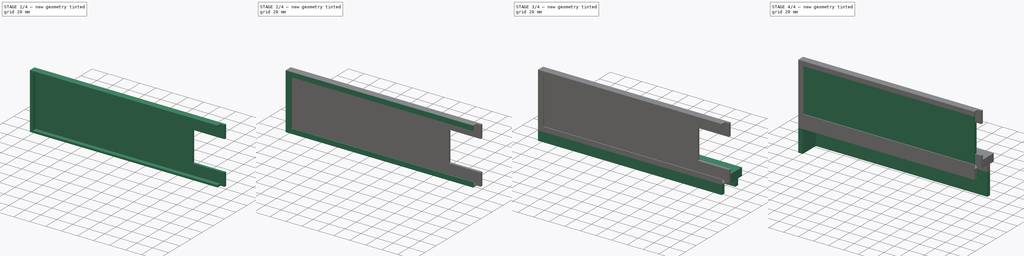
[diagram: build sequence overview — one tinted view per stage of 4, left to right]
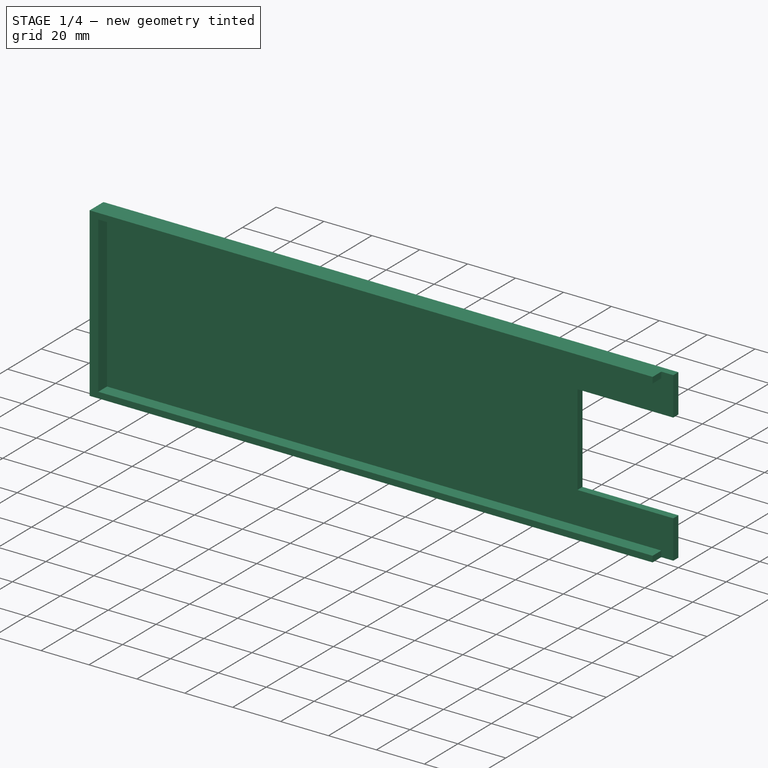
[diagram: stage 1 of 4 — iso view after this stage's code; geometry added in this stage tinted green]
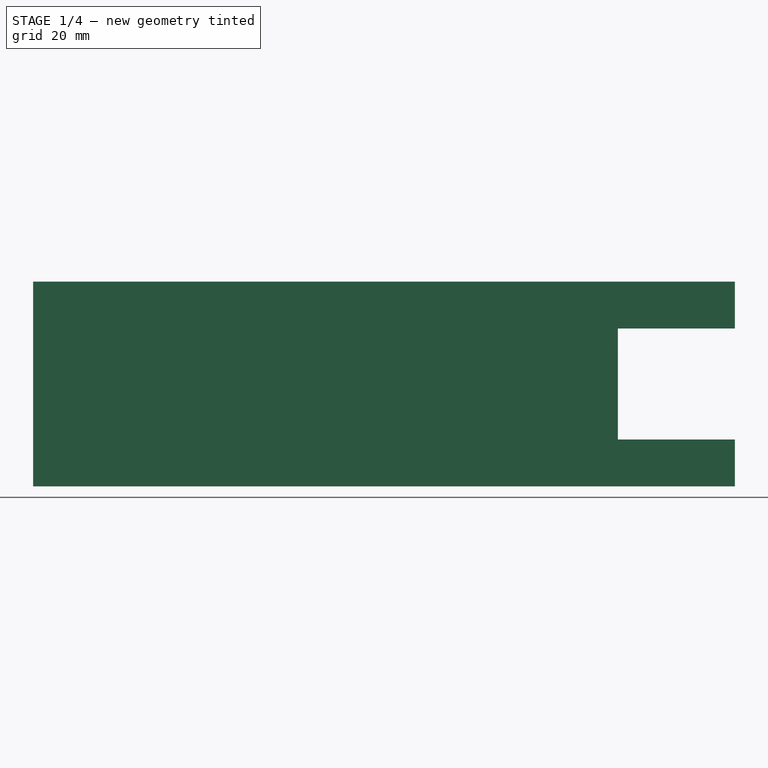
[diagram: stage 1 of 4 — front view after this stage's code; geometry added in this stage tinted green]
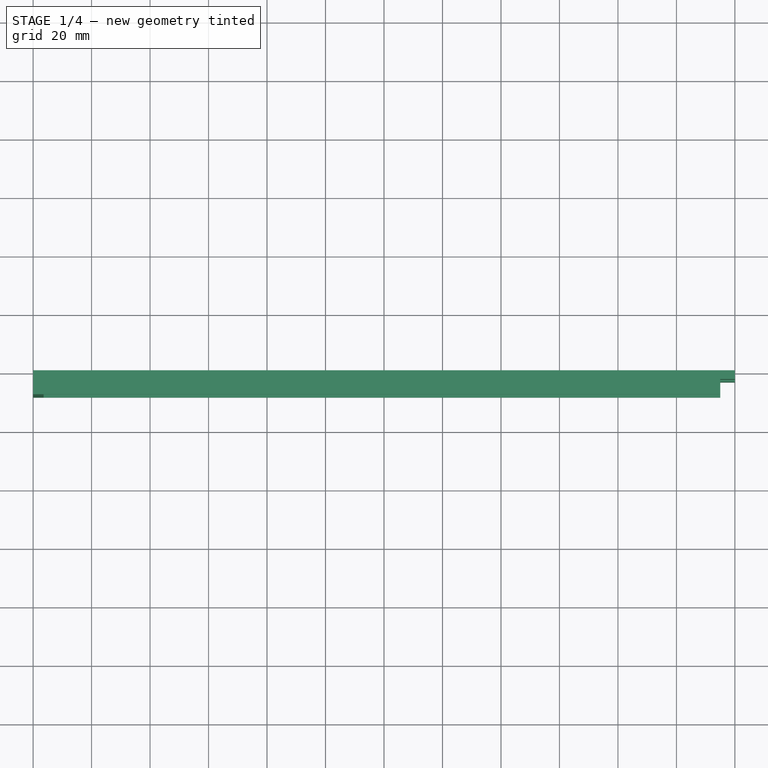
[diagram: stage 1 of 4 — top view after this stage's code; geometry added in this stage tinted green]
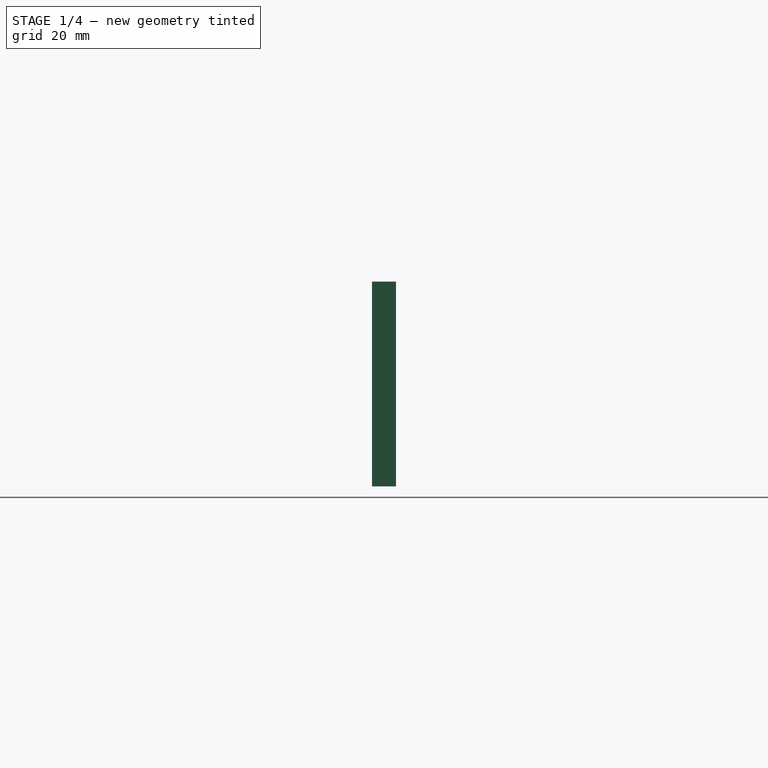
[diagram: stage 1 of 4 — right view after this stage's code; geometry added in this stage tinted green]
FCSTD DOCUMENT  (FreeCAD 0.18R16161 (Git))
Label: Wide Display Mount
License: All rights reserved
LicenseURL: http://en.wikipedia.org/wiki/All_rights_reserved
objects: Sketcher::SketchObject×10, PartDesign::Pad×8, PartDesign::Pocket×2, PartDesign::Body×2, PartDesign::Chamfer×2
note: 34 computed .brp shape members not serialized (recipe doc carries the construction recipe); baked Part::Feature solids carry a one-line shape summary decoded from their .brp

FEATURE [PartDesign::Body] Body  label="Display"
  Group = -> [Sketch,Pad,Sketch001,Pocket]
  Origin = -> Origin
  Placement = pos=(4,-3,2.8) rot=(0,0,1;0rad)
  Tip = -> Pocket
FEATURE [Sketcher::SketchObject] Sketch002
  MapMode = 5
  Placement = pos=(0,0,0) rot=(1,0,0;1.5708rad)
  Support = -> [XZ_Plane001]
  sketch-geometry (4):
    g0: LineSegment StartX=0 StartY=0 StartZ=0 EndX=240 EndY=0 EndZ=0
    g1: LineSegment StartX=240 StartY=0 StartZ=0 EndX=240 EndY=70 EndZ=0
    g2: LineSegment StartX=240 StartY=70 StartZ=0 EndX=0 EndY=70 EndZ=0
    g3: LineSegment StartX=0 StartY=70 StartZ=0 EndX=0 EndY=0 EndZ=0
  constraints (11):
    c: Coincident(g0,g1)
    c: Coincident(g1,g2)
    c: Coincident(g2,g3)
    c: Coincident(g3,g0)
    c: Horizontal(g0)
    c: Horizontal(g2)
    c: Vertical(g1)
    c: Vertical(g3)
    c: Coincident(g0,g-1)
    c: DistanceX(g2,g2) = 240
    c: DistanceY(g1,g1) = 70
FEATURE [PartDesign::Pad] Pad001
  Length = 3
  Length2 = 100
  Placement = pos=(0,0,0) rot=(1,0,0;1.5708rad)
  Profile = -> Sketch002
  Type = 0
FEATURE [Sketcher::SketchObject] Sketch003
  MapMode = 5
  Placement = pos=(0,1e-16,0) rot=(-1,0,0;1.5708rad)
  Support = -> [Pad001]
  sketch-geometry (4):
    g0: LineSegment StartX=260 StartY=-54 StartZ=0 EndX=200 EndY=-54 EndZ=0
    g1: LineSegment StartX=200 StartY=-54 StartZ=0 EndX=200 EndY=-16 EndZ=0
    g2: LineSegment StartX=200 StartY=-16 StartZ=0 EndX=260 EndY=-16 EndZ=0
    g3: LineSegment StartX=260 StartY=-16 StartZ=0 EndX=260 EndY=-54 EndZ=0
  constraints (12):
    c: Coincident(g0,g1)
    c: Coincident(g1,g2)
    c: Coincident(g2,g3)
    c: Coincident(g3,g0)
    c: Horizontal(g0)
    c: Horizontal(g2)
    c: Vertical(g1)
    c: Vertical(g3)
    c: DistanceY(g1,g-1) = 16
    c: DistanceX(g-1,g1) = 200
    c: DistanceX(g2,g2) = 60
    c: DistanceY(g1,g1) = 38
FEATURE [PartDesign::Pocket] Pocket001
  BaseFeature = -> Pad001
  Length = 5
  Length2 = 100
  Placement = pos=(0,0,0) rot=(1,0,0;1.5708rad)
  Profile = -> Sketch003
  Type = 0
FEATURE [Sketcher::SketchObject] Sketch004
  MapMode = 5
  Placement = pos=(0,-3,1.3e-15) rot=(1,0,0;1.5708rad)
  Support = -> [Pocket001]
  sketch-geometry (8):
    g0: LineSegment StartX=0 StartY=70 StartZ=0 EndX=0 EndY=0 EndZ=0
    g1: LineSegment StartX=0 StartY=70 StartZ=0 EndX=235 EndY=70 EndZ=0
    g2: LineSegment StartX=235 StartY=70 StartZ=0 EndX=235 EndY=67.5 EndZ=0
    g3: LineSegment StartX=235 StartY=67.5 StartZ=0 EndX=3.6 EndY=67.5 EndZ=0
    g4: LineSegment StartX=0 StartY=0 StartZ=0 EndX=235 EndY=0 EndZ=0
    g5: LineSegment StartX=235 StartY=0 StartZ=0 EndX=235 EndY=2.5 EndZ=0
    g6: LineSegment StartX=235 StartY=2.5 StartZ=0 EndX=3.6 EndY=2.5 EndZ=0
    g7: LineSegment StartX=3.6 StartY=2.5 StartZ=0 EndX=3.6 EndY=67.5 EndZ=0
  constraints (23):
    c: Vertical(g0)
    c: Coincident(g1,g2)
    c: Coincident(g2,g3)
    c: Horizontal(g1)
    c: Horizontal(g3)
    c: Vertical(g2)
    c: Coincident(g4,g5)
    c: Coincident(g5,g6)
    c: Horizontal(g4)
    c: Horizontal(g6)
    c: Vertical(g5)
    c: Equal(g1,g4)
    c: DistanceY(g0,g0) = 70
    c: Equal(g2,g5)
    c: Coincident(g7,g6)
    c: Coincident(g7,g3)
    c: Vertical(g7)
    c: DistanceX(g0,g3) = 3.6
    c: Coincident(g4,g0)
    c: Coincident(g1,g0)
    c: Coincident(g0,g-1)
    c: DistanceX(g4,g4) = 235
    c: DistanceY(g7,g7) = 65
FEATURE [PartDesign::Pad] Pad002
  BaseFeature = -> Pocket001
  Length = 5.2
  Length2 = 100
  Placement = pos=(0,0,0) rot=(1,0,0;1.5708rad)
  Profile = -> Sketch004
  Type = 0
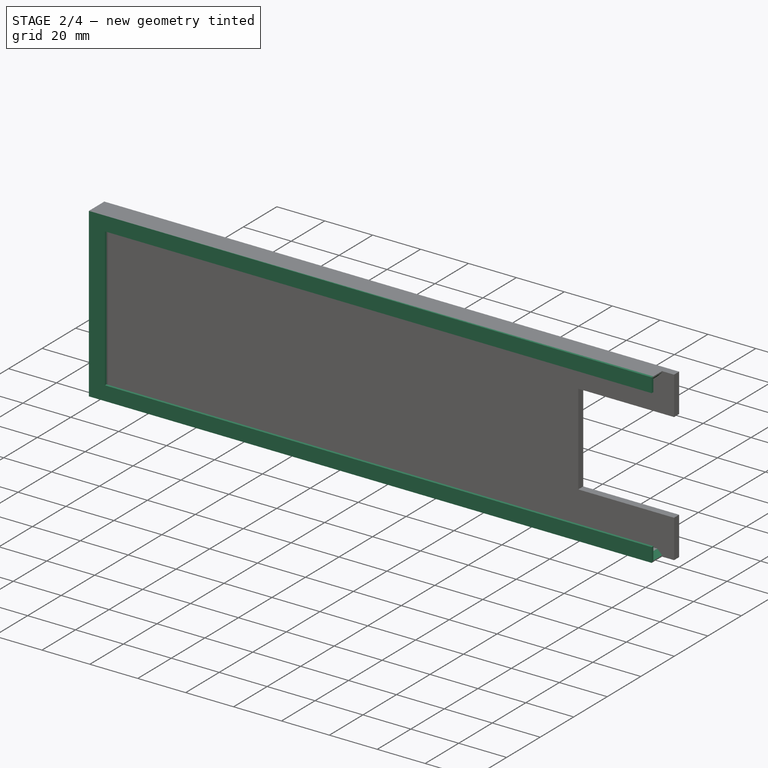
[diagram: stage 2 of 4 — iso view after this stage's code; geometry added in this stage tinted green]
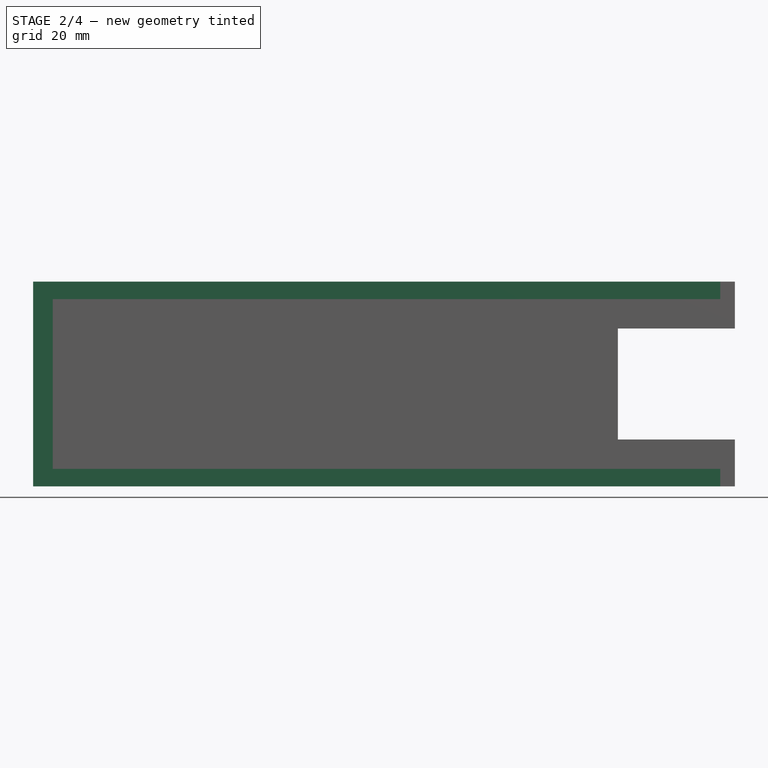
[diagram: stage 2 of 4 — front view after this stage's code; geometry added in this stage tinted green]
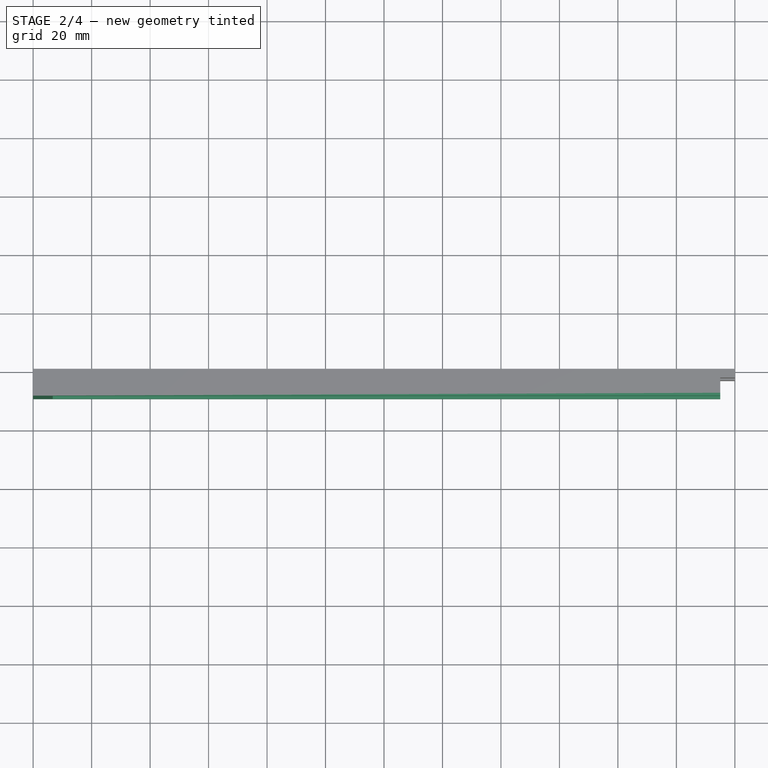
[diagram: stage 2 of 4 — top view after this stage's code; geometry added in this stage tinted green]
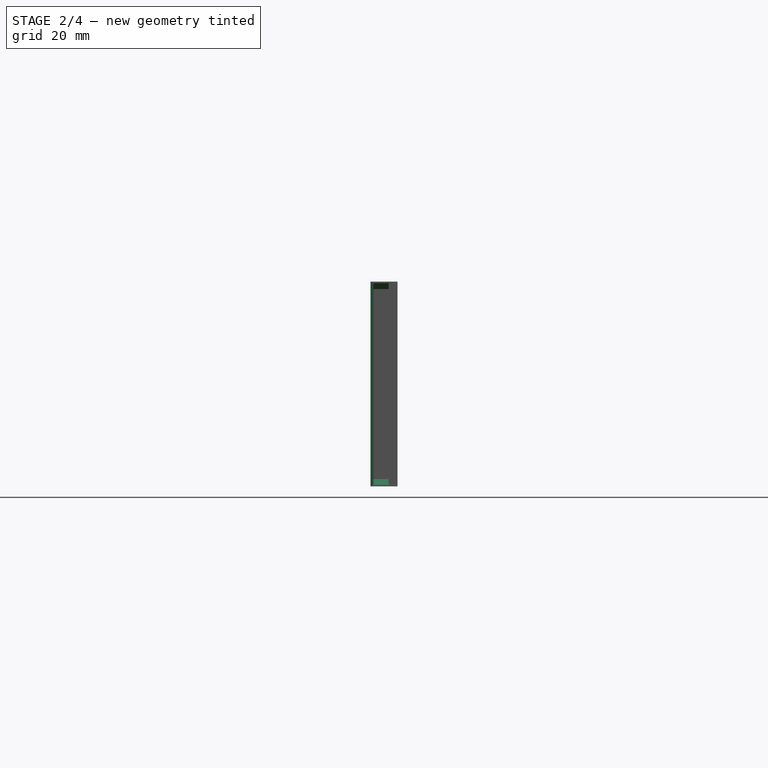
[diagram: stage 2 of 4 — right view after this stage's code; geometry added in this stage tinted green]
FEATURE [PartDesign::Chamfer] Chamfer
  Base = -> Pad002 [Edge46]
  BaseFeature = -> Pad002
  Placement = pos=(0,0,0) rot=(1,0,0;1.5708rad)
  Size = 2
FEATURE [PartDesign::Chamfer] Chamfer001
  Base = -> Chamfer [Edge23]
  BaseFeature = -> Chamfer
  Placement = pos=(0,0,0) rot=(1,0,0;1.5708rad)
  Size = 2
FEATURE [Sketcher::SketchObject] Sketch005
  MapMode = 5
  Placement = pos=(0,-8.2,1.09e-14) rot=(1,0,0;1.5708rad)
  Support = -> [Chamfer001]
  sketch-geometry (8):
    g0: LineSegment StartX=0 StartY=0 StartZ=0 EndX=0 EndY=70 EndZ=0
    g1: LineSegment StartX=0 StartY=70 StartZ=0 EndX=235 EndY=70 EndZ=0
    g2: LineSegment StartX=235 StartY=70 StartZ=0 EndX=235 EndY=64.05 EndZ=0
    g3: LineSegment StartX=235 StartY=64.05 StartZ=0 EndX=6.7 EndY=64.05 EndZ=0
    g4: LineSegment StartX=6.7 StartY=64.05 StartZ=0 EndX=6.7 EndY=5.95 EndZ=0
    g5: LineSegment StartX=6.7 StartY=5.95 StartZ=0 EndX=235 EndY=5.95 EndZ=0
    g6: LineSegment StartX=235 StartY=5.95 StartZ=0 EndX=235 EndY=0 EndZ=0
    g7: LineSegment StartX=235 StartY=0 StartZ=0 EndX=0 EndY=0 EndZ=0
  constraints (23):
    c: Coincident(g-1,g0)
    c: Vertical(g0)
    c: Coincident(g0,g1)
    c: Horizontal(g1)
    c: Coincident(g1,g2)
    c: Vertical(g2)
    c: Coincident(g2,g3)
    c: Horizontal(g3)
    c: Coincident(g3,g4)
    c: Vertical(g4)
    c: Coincident(g4,g5)
    c: Horizontal(g5)
    c: Coincident(g5,g6)
    c: Vertical(g6)
    c: Coincident(g6,g7)
    c: Coincident(g7,g0)
    c: Horizontal(g7)
    c: Equal(g2,g6)
    c: DistanceY(g0,g0) = 70
    c: DistanceX(g1,g1) = 235
    c: DistanceY(g4,g4) = 58.1
    c: DistanceX(g0,g4) = 6.7
    c: Equal(g7,g1)
FEATURE [PartDesign::Pad] Pad003
  BaseFeature = -> Chamfer001
  Length = 1
  Length2 = 100
  Placement = pos=(0,0,0) rot=(1,0,0;1.5708rad)
  Profile = -> Sketch005
  Type = 0
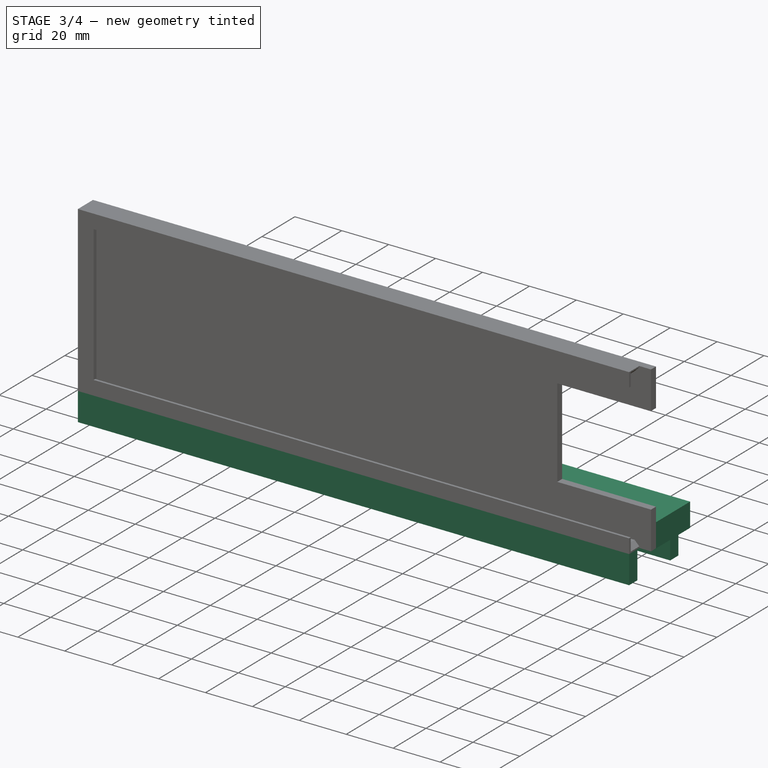
[diagram: stage 3 of 4 — iso view after this stage's code; geometry added in this stage tinted green]
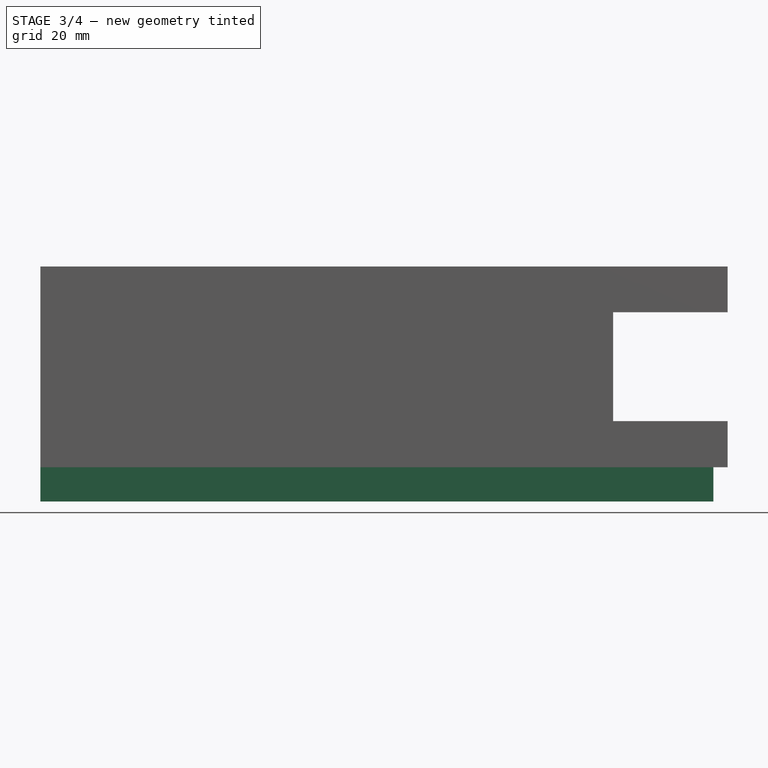
[diagram: stage 3 of 4 — front view after this stage's code; geometry added in this stage tinted green]
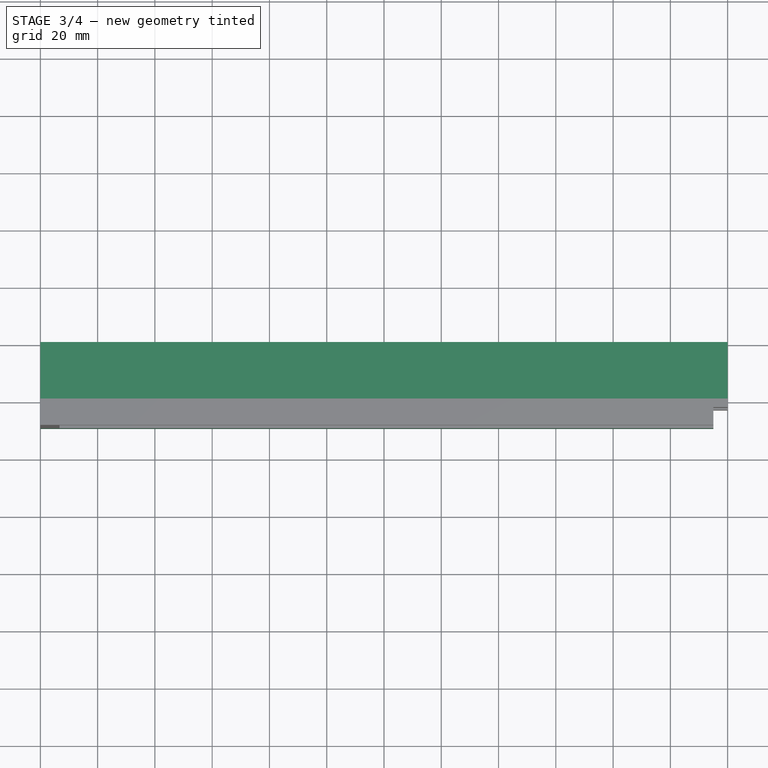
[diagram: stage 3 of 4 — top view after this stage's code; geometry added in this stage tinted green]
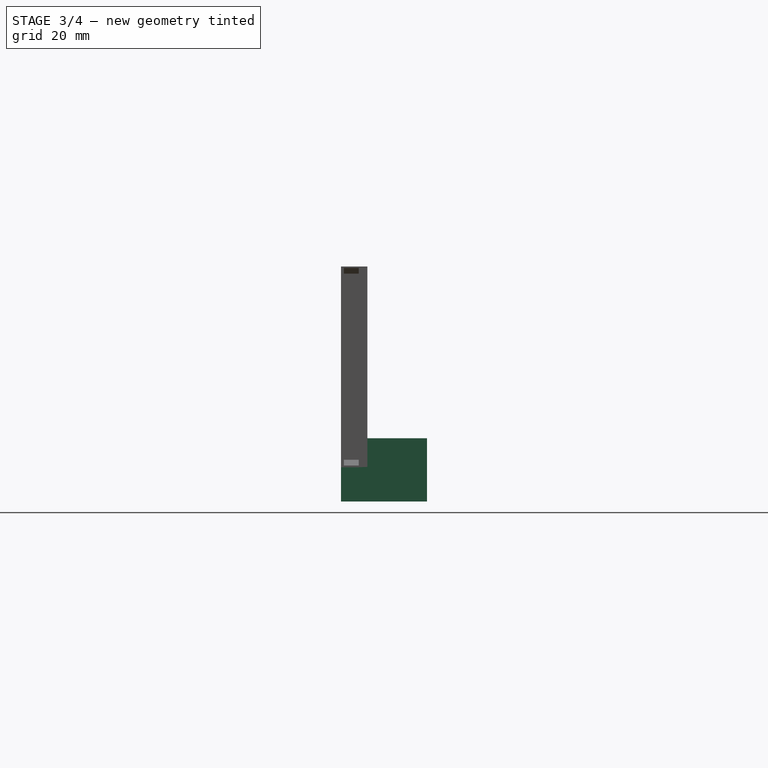
[diagram: stage 3 of 4 — right view after this stage's code; geometry added in this stage tinted green]
FEATURE [Sketcher::SketchObject] Sketch006
  MapMode = 5
  Placement = pos=(0,0,0) rot=(1,0,0;3.14159rad)
  Support = -> [Pad003]
  expr: Constraints[9] = 5 + 5 + 20
  sketch-geometry (6):
    g0: LineSegment StartX=0 StartY=9.2 StartZ=0 EndX=235 EndY=9.2 EndZ=0
    g1: LineSegment StartX=240 StartY=3 StartZ=0 EndX=240 EndY=-20.8 EndZ=0
    g2: LineSegment StartX=240 StartY=-20.8 StartZ=0 EndX=0 EndY=-20.8 EndZ=0
    g3: LineSegment StartX=0 StartY=-20.8 StartZ=0 EndX=0 EndY=9.2 EndZ=0
    g4: LineSegment StartX=235 StartY=9.2 StartZ=0 EndX=235 EndY=3 EndZ=0
    g5: LineSegment StartX=235 StartY=3 StartZ=0 EndX=240 EndY=3 EndZ=0
  constraints (18):
    c: Coincident(g1,g2)
    c: Coincident(g2,g3)
    c: Coincident(g3,g0)
    c: Horizontal(g0)
    c: Horizontal(g2)
    c: Vertical(g1)
    c: Vertical(g3)
    c: Vertical(g0,g-1)
    c: DistanceY(g-1,g0) = 9.2
    c: DistanceY(g3,g3) = 30
    c: DistanceX(g2,g2) = 240
    c: DistanceX(g0,g0) = 235
    c: DistanceY(g1,g1) = 23.8
    c: Coincident(g0,g4)
    c: Vertical(g4)
    c: Coincident(g4,g5)
    c: Coincident(g5,g1)
    c: Horizontal(g5)
FEATURE [PartDesign::Pad] Pad004
  BaseFeature = -> Pad003
  Length = 0.1
  Length2 = 100
  Placement = pos=(0,0,0) rot=(1,0,0;1.5708rad)
  Profile = -> Sketch006
  Type = 0
FEATURE [Sketcher::SketchObject] Sketch007
  MapMode = 5
  Placement = pos=(0,0,0) rot=(0,0,1;3.14159rad)
  Support = -> [Pad004]
  sketch-geometry (4):
    g0: LineSegment StartX=0 StartY=0 StartZ=0 EndX=-240 EndY=0 EndZ=0
    g1: LineSegment StartX=-240 StartY=0 StartZ=0 EndX=-240 EndY=-20.8 EndZ=0
    g2: LineSegment StartX=-240 StartY=-20.8 StartZ=0 EndX=0 EndY=-20.8 EndZ=0
    g3: LineSegment StartX=0 StartY=-20.8 StartZ=0 EndX=0 EndY=0 EndZ=0
  constraints (11):
    c: Coincident(g0,g1)
    c: Coincident(g1,g2)
    c: Coincident(g2,g3)
    c: Coincident(g3,g0)
    c: Horizontal(g0)
    c: Horizontal(g2)
    c: Vertical(g1)
    c: Vertical(g3)
    c: Coincident(g0,g-1)
    c: DistanceY(g1,g1) = 20.8
    c: DistanceX(g2,g2) = 240
FEATURE [PartDesign::Pad] Pad005
  BaseFeature = -> Pad004
  Length = 10
  Length2 = 100
  Placement = pos=(0,0,0) rot=(1,0,0;1.5708rad)
  Profile = -> Sketch007
  Type = 0
FEATURE [Sketcher::SketchObject] Sketch008
  MapMode = 5
  Placement = pos=(0,-2e-16,-0.1) rot=(1,0,0;3.14159rad)
  Support = -> [Pad005]
  sketch-geometry (8):
    g0: LineSegment StartX=235 StartY=9.2 StartZ=0 EndX=0 EndY=9.2 EndZ=0
    g1: LineSegment StartX=0 StartY=9.2 StartZ=0 EndX=0 EndY=-20.8 EndZ=0
    g2: LineSegment StartX=0 StartY=-20.8 StartZ=0 EndX=235 EndY=-20.8 EndZ=0
    g3: LineSegment StartX=235 StartY=-20.8 StartZ=0 EndX=235 EndY=-15.8 EndZ=0
    g4: LineSegment StartX=235 StartY=-15.8 StartZ=0 EndX=6 EndY=-15.8 EndZ=0
    g5: LineSegment StartX=6 StartY=-15.8 StartZ=0 EndX=6 EndY=4.2 EndZ=0
    g6: LineSegment StartX=6 StartY=4.2 StartZ=0 EndX=235 EndY=4.2 EndZ=0
    g7: LineSegment StartX=235 StartY=4.2 StartZ=0 EndX=235 EndY=9.2 EndZ=0
  constraints (24):
    c: Horizontal(g0)
    c: Coincident(g0,g1)
    c: Vertical(g1)
    c: Coincident(g1,g2)
    c: Horizontal(g2)
    c: Coincident(g2,g3)
    c: Coincident(g3,g4)
    c: Horizontal(g4)
    c: Coincident(g4,g5)
    c: Vertical(g5)
    c: Coincident(g5,g6)
    c: Horizontal(g6)
    c: Coincident(g6,g7)
    c: Coincident(g7,g0)
    c: Vertical(g7)
    c: Vertical(g3)
    c: Equal(g3,g7)
    c: Equal(g0,g2)
    c: DistanceY(g5,g5) = 20
    c: Vertical(g-1,g0)
    c: DistanceY(g-1,g0) = 9.2
    c: DistanceY(g3,g3) = 5
    c: DistanceX(g2,g2) = 235
    c: DistanceX(g0,g5) = 6
FEATURE [PartDesign::Pad] Pad006
  BaseFeature = -> Pad005
  Length = 12
  Length2 = 100
  Placement = pos=(0,0,0) rot=(1,0,0;1.5708rad)
  Profile = -> Sketch008
  Type = 0
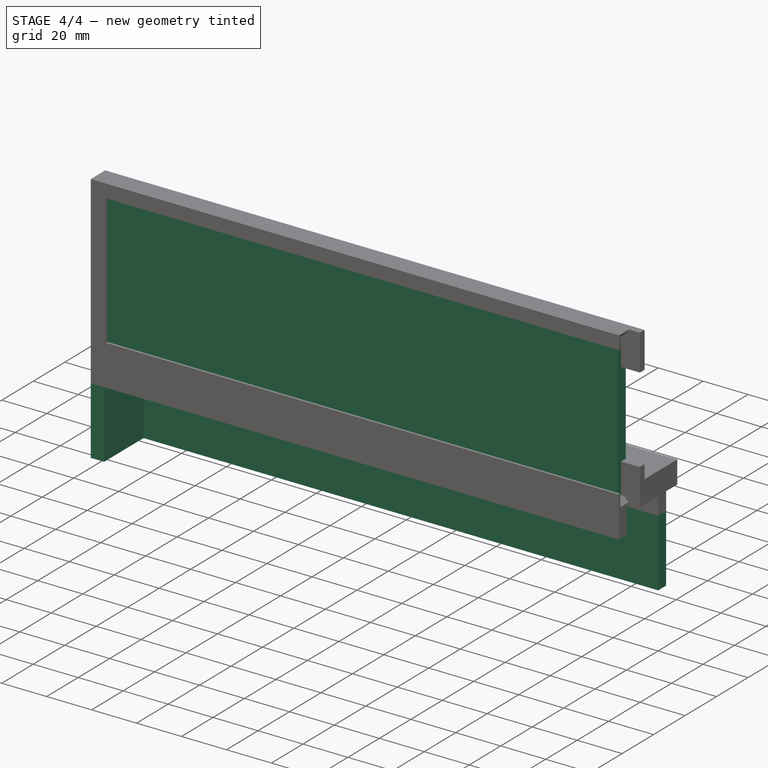
[diagram: stage 4 of 4 — iso view after this stage's code; geometry added in this stage tinted green]
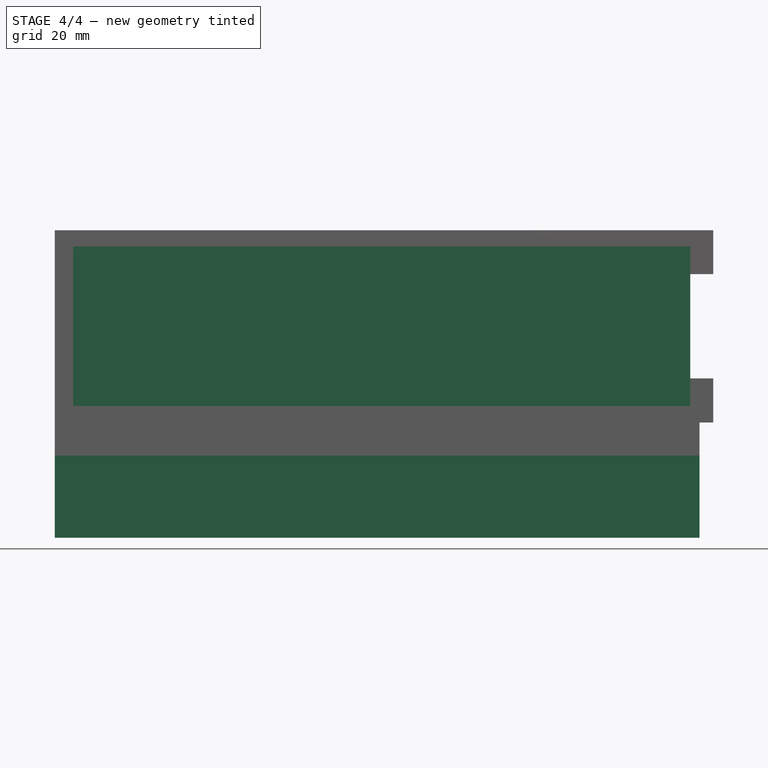
[diagram: stage 4 of 4 — front view after this stage's code; geometry added in this stage tinted green]
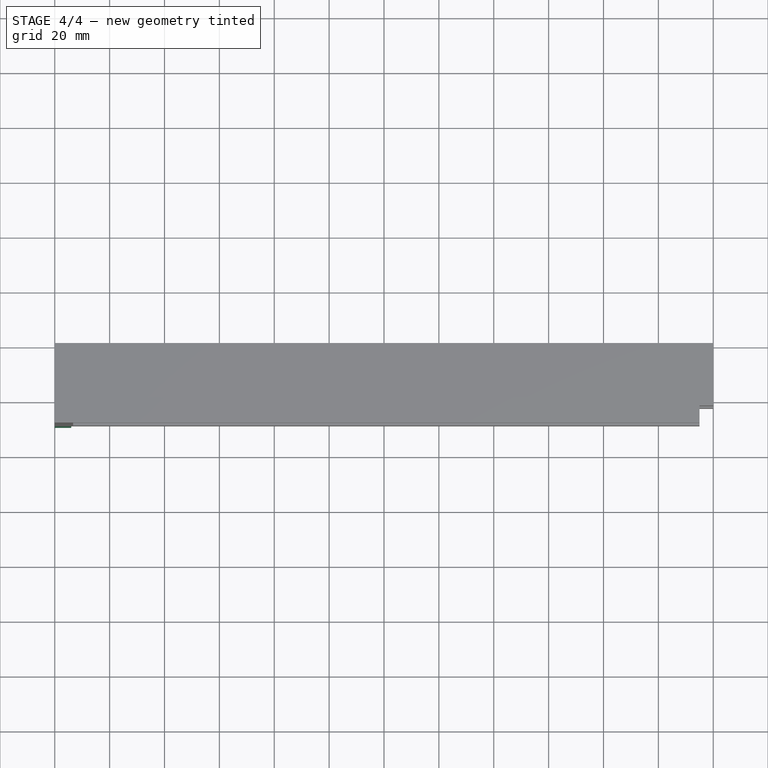
[diagram: stage 4 of 4 — top view after this stage's code; geometry added in this stage tinted green]
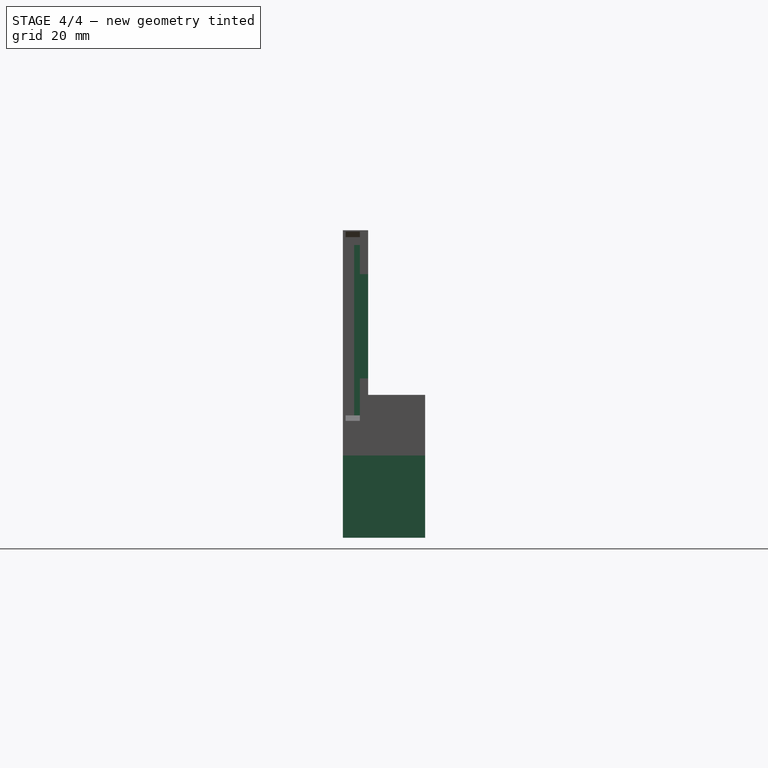
[diagram: stage 4 of 4 — right view after this stage's code; geometry added in this stage tinted green]
FEATURE [Sketcher::SketchObject] Sketch
  MapMode = 5
  Placement = pos=(0,0,0) rot=(1,0,0;1.5708rad)
  Support = -> [XZ_Plane]
  sketch-geometry (4):
    g0: LineSegment StartX=0 StartY=0 StartZ=0 EndX=231.6 EndY=0 EndZ=0
    g1: LineSegment StartX=231.6 StartY=0 StartZ=0 EndX=231.6 EndY=64.6 EndZ=0
    g2: LineSegment StartX=231.6 StartY=64.6 StartZ=0 EndX=0 EndY=64.6 EndZ=0
    g3: LineSegment StartX=0 StartY=64.6 StartZ=0 EndX=0 EndY=0 EndZ=0
  constraints (11):
    c: Coincident(g0,g1)
    c: Coincident(g1,g2)
    c: Coincident(g2,g3)
    c: Coincident(g3,g0)
    c: Horizontal(g0)
    c: Horizontal(g2)
    c: Vertical(g1)
    c: Vertical(g3)
    c: DistanceX(g2,g2) = 231.6
    c: DistanceY(g3,g3) = 64.6
    c: Coincident(g0,g-1)
FEATURE [PartDesign::Pad] Pad
  Length = 5.1
  Length2 = 100
  Placement = pos=(0,0,0) rot=(1,0,0;1.5708rad)
  Profile = -> Sketch
  Type = 0
FEATURE [Sketcher::SketchObject] Sketch001
  MapMode = 5
  Placement = pos=(0,-5.1,2.3e-15) rot=(1,0,0;1.5708rad)
  Support = -> [Pad]
  sketch-geometry (4):
    g0: LineSegment StartX=2.5 StartY=3.4 StartZ=0 EndX=224.6 EndY=3.4 EndZ=0
    g1: LineSegment StartX=224.6 StartY=3.4 StartZ=0 EndX=224.6 EndY=61.3 EndZ=0
    g2: LineSegment StartX=224.6 StartY=61.3 StartZ=0 EndX=2.5 EndY=61.3 EndZ=0
    g3: LineSegment StartX=2.5 StartY=61.3 StartZ=0 EndX=2.5 EndY=3.4 EndZ=0
  constraints (12):
    c: Coincident(g0,g1)
    c: Coincident(g1,g2)
    c: Coincident(g2,g3)
    c: Coincident(g3,g0)
    c: Horizontal(g0)
    c: Horizontal(g2)
    c: Vertical(g1)
    c: Vertical(g3)
    c: DistanceX(g2,g2) = 222.1
    c: DistanceY(g1,g1) = 57.9
    c: DistanceX(g-1,g0) = 2.5
    c: DistanceY(g-1,g0) = 3.4
FEATURE [PartDesign::Pocket] Pocket
  BaseFeature = -> Pad
  Length = 1
  Length2 = 100
  Placement = pos=(0,0,0) rot=(1,0,0;1.5708rad)
  Profile = -> Sketch001
  Type = 0
FEATURE [Sketcher::SketchObject] Sketch009
  MapMode = 5
  Placement = pos=(0,-3.77e-14,-12.1) rot=(1,0,0;3.14159rad)
  Support = -> [Pad006]
  sketch-geometry (6):
    g0: LineSegment StartX=6 StartY=9.2 StartZ=0 EndX=0 EndY=9.2 EndZ=0
    g1: LineSegment StartX=0 StartY=9.2 StartZ=0 EndX=0 EndY=-20.8 EndZ=0
    g2: LineSegment StartX=0 StartY=-20.8 StartZ=0 EndX=235 EndY=-20.8 EndZ=0
    g3: LineSegment StartX=235 StartY=-20.8 StartZ=0 EndX=235 EndY=-15.8 EndZ=0
    g4: LineSegment StartX=235 StartY=-15.8 StartZ=0 EndX=6 EndY=-15.8 EndZ=0
    g5: LineSegment StartX=6 StartY=-15.8 StartZ=0 EndX=6 EndY=9.2 EndZ=0
  constraints (18):
    c: Horizontal(g0)
    c: Coincident(g0,g1)
    c: Vertical(g1)
    c: Coincident(g1,g2)
    c: Horizontal(g2)
    c: Coincident(g2,g3)
    c: Coincident(g3,g4)
    c: Horizontal(g4)
    c: Coincident(g4,g5)
    c: Vertical(g5)
    c: Vertical(g3)
    c: Vertical(g-1,g0)
    c: DistanceY(g-1,g0) = 9.2
    c: DistanceY(g3,g3) = 5
    c: DistanceX(g2,g2) = 235
    c: DistanceX(g0,g5) = 6
    c: Coincident(g0,g5)
    c: DistanceY(g1,g1) = 30
FEATURE [PartDesign::Pad] Pad007
  BaseFeature = -> Pad006
  Length = 30
  Length2 = 100
  Placement = pos=(0,0,0) rot=(1,0,0;1.5708rad)
  Profile = -> Sketch009
  Type = 0
FEATURE [PartDesign::Body] Body001  label="Frame"
  Group = -> [Sketch002,Pad001,Sketch003,Pocket001,Sketch004,Pad002,Chamfer,Chamfer001,Sketch005,Pad003,Sketch006,Pad004,Sketch007,Pad005,Sketch008,Pad006,Pad007]
  Origin = -> Origin001
  Tip = -> Pad007
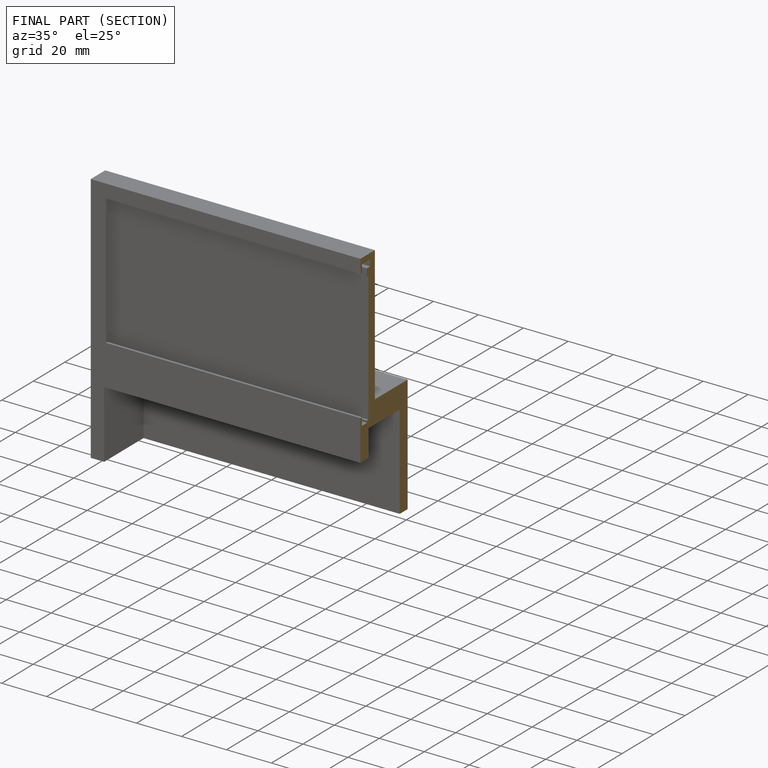
[diagram: finished part — half-section view (interior)]
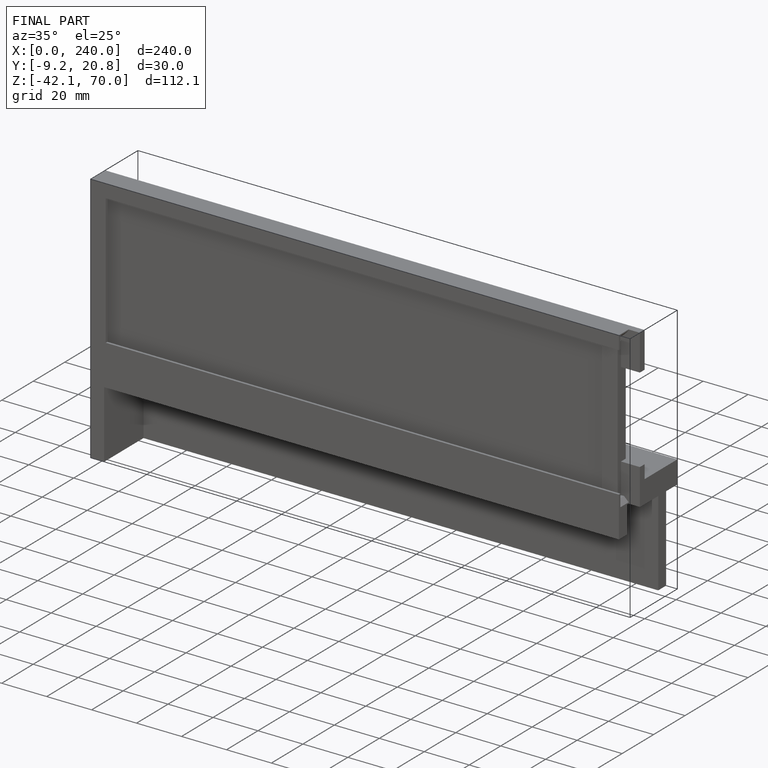
[diagram: finished part — iso view with bounding-box wireframe]
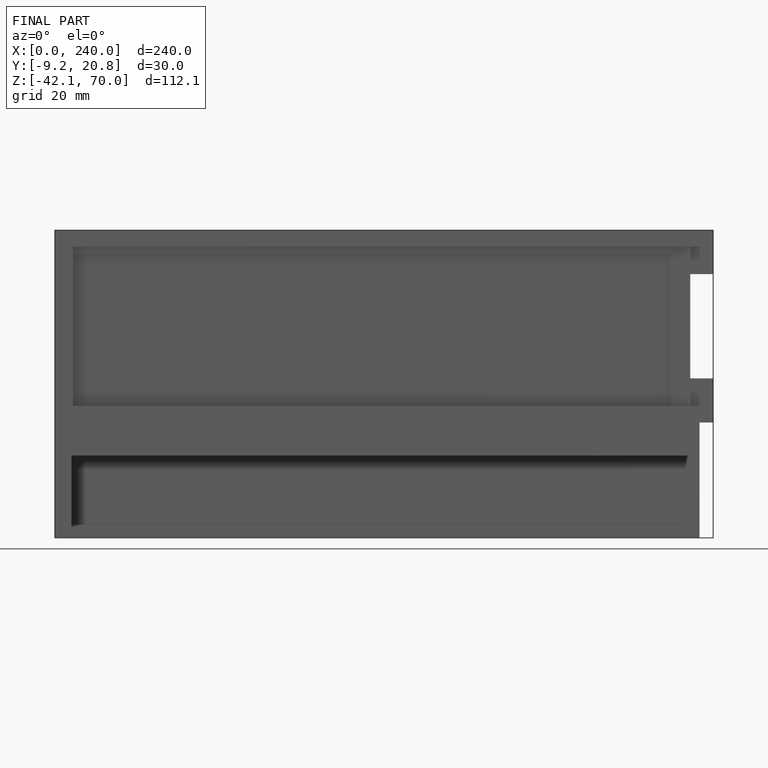
[diagram: finished part — front view with bounding-box wireframe]
